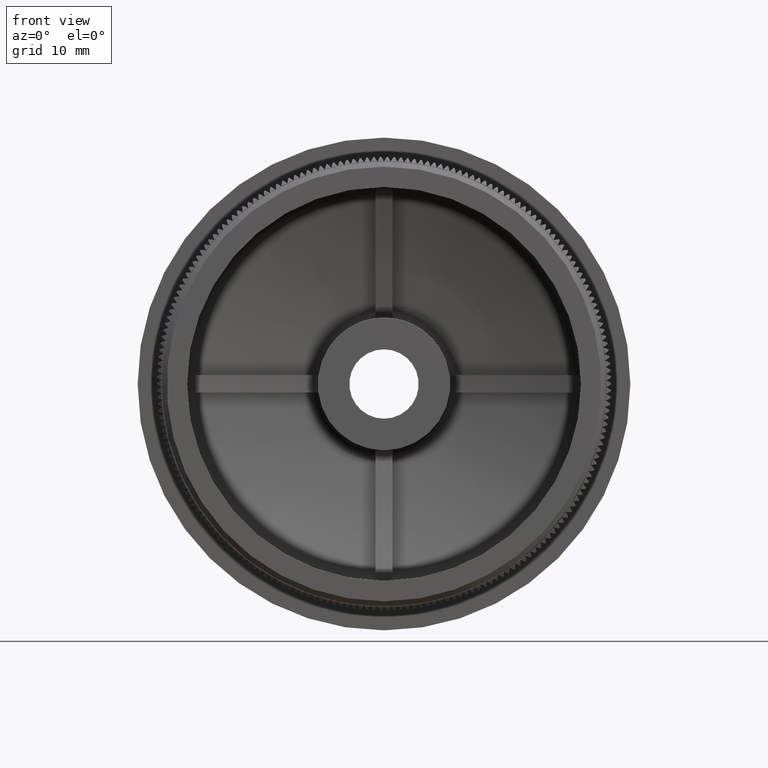
[diagram: clean part render]
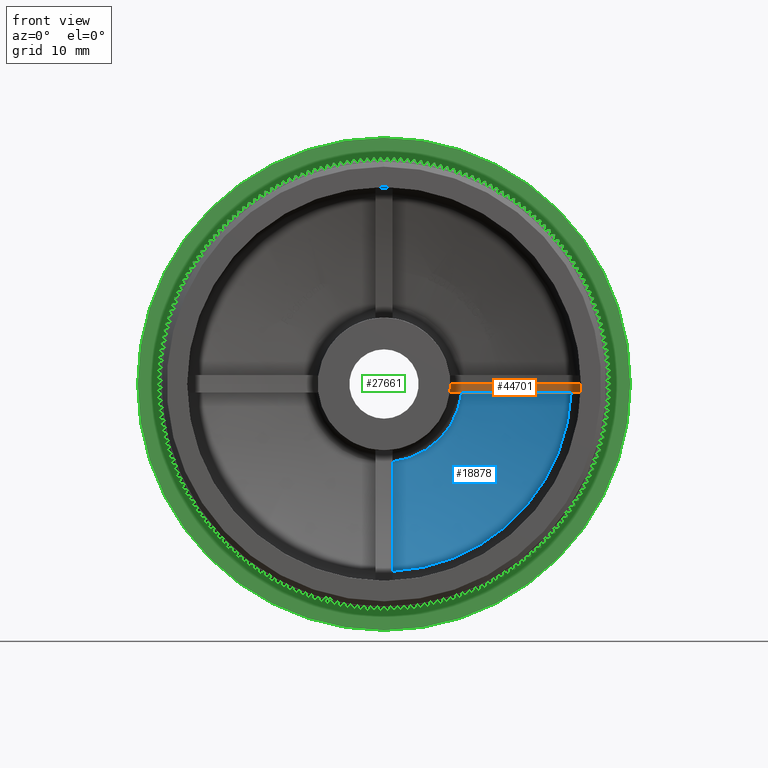
[diagram: same view with three faces highlighted in distinct colors, each labeled with its STEP entity id]
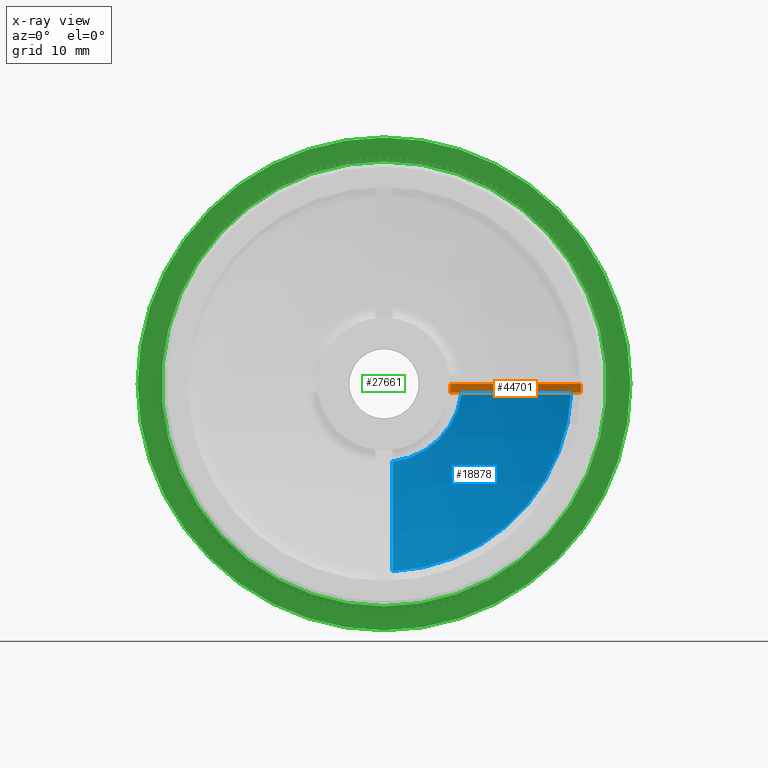
[diagram: x-ray of the same camera — body ghosted, the three highlighted faces saturated]
A machine part, front view with three faces highlighted in distinct colors.
The next image is the same camera in x-ray (body ghosted, the three faces saturated) — at least one of them is partly hidden behind the body in this view.
Their STEP definitions:

[orange] entity #44701 — the highlighted spherical surface has radius 46.0764 mm.
#833 = CIRCLE ( 'NONE', #47558, 19.29999999999999700 ) ;
#1590 = CIRCLE ( 'NONE', #49428, 6.500000000000000900 ) ;
#7968 = DIRECTION ( 'NONE',  ( -0.0000000000000000000, -1.000000000000000000, -0.0000000000000000000 ) ) ;
#9398 = CARTESIAN_POINT ( 'NONE',  ( 6.500000000000000900, 16.50921826470155200, -1.579794370896446900E-015 ) ) ;
#12012 = EDGE_CURVE ( 'NONE', #22072, #48135, #43799, .T. ) ;
#12281 = DIRECTION ( 'NONE',  ( -1.000000000000000000, 0.0000000000000000000, 0.0000000000000000000 ) ) ;
#12531 = EDGE_LOOP ( 'NONE', ( #48731, #29085, #55323, #56074 ) ) ;
#13891 = EDGE_CURVE ( 'NONE', #55106, #50538, #20161, .T. ) ;
#15462 = DIRECTION ( 'NONE',  ( -5.882405165090820600E-018, -0.0000000000000000000, 1.000000000000000000 ) ) ;
#16165 = CARTESIAN_POINT ( 'NONE',  ( 0.0000000000000000000, -29.10639209225696100, 0.0000000000000000000 ) ) ;
#16758 = DIRECTION ( 'NONE',  ( 0.0000000000000000000, 0.0000000000000000000, -1.000000000000000000 ) ) ;
#20161 = CIRCLE ( 'NONE', #40112, 46.06855118450546600 ) ;
#21252 = DIRECTION ( 'NONE',  ( -1.598721155460225700E-014, 0.0000000000000000000, -1.000000000000000000 ) ) ;
#22072 = VERTEX_POINT ( 'NONE', #9398 ) ;
#23520 = FACE_OUTER_BOUND ( 'NONE', #12531, .T. ) ;
#23986 = CARTESIAN_POINT ( 'NONE',  ( 19.29999999999999700, 12.73310967627991300, -2.363568322354391400E-015 ) ) ;
#24158 = EDGE_CURVE ( 'NONE', #22072, #50538, #1590, .T. ) ;
#24818 = AXIS2_PLACEMENT_3D ( 'NONE', #16165, #47159, #12281 ) ;
#25583 = AXIS2_PLACEMENT_3D ( 'NONE', #30816, #52892, #30623 ) ;
#27648 = CARTESIAN_POINT ( 'NONE',  ( 6.444183423892371600, 16.50921826470155200, -0.8499999999999998700 ) ) ;
#29085 = ORIENTED_EDGE ( 'NONE', *, *, #24158, .T. ) ;
#30162 = CARTESIAN_POINT ( 'NONE',  ( 0.0000000000000000000, 12.73310967627991300, 0.0000000000000000000 ) ) ;
#30623 = DIRECTION ( 'NONE',  ( -1.000000000000000000, 0.0000000000000000000, 1.224646799147353200E-016 ) ) ;
#30772 = CARTESIAN_POINT ( 'NONE',  ( 0.0000000000000000000, 16.50921826470155200, 0.0000000000000000000 ) ) ;
#30816 = CARTESIAN_POINT ( 'NONE',  ( 0.0000000000000000000, -29.10639209225696100, 0.0000000000000000000 ) ) ;
#31300 = CARTESIAN_POINT ( 'NONE',  ( 19.28127329820309700, 12.73310967627991300, -0.8499999999999997600 ) ) ;
#33142 = CARTESIAN_POINT ( 'NONE',  ( 5.000044390327195400E-018, -29.10639209225696100, -0.8499999999999998700 ) ) ;
#33546 = DIRECTION ( 'NONE',  ( -1.000000000000000000, -3.539594854822876200E-015, -4.706908051626165200E-018 ) ) ;
#39694 = DIRECTION ( 'NONE',  ( 0.0000000000000000000, 1.000000000000000000, 0.0000000000000000000 ) ) ;
#40112 = AXIS2_PLACEMENT_3D ( 'NONE', #33142, #15462, #33546 ) ;
#43799 = CIRCLE ( 'NONE', #25583, 46.07639209225696700 ) ;
#44701 = ADVANCED_FACE ( 'NONE', ( #23520 ), #47060, .F. ) ;
#47060 = SPHERICAL_SURFACE ( 'NONE', #24818, 46.07639209225696700 ) ;
#47159 = DIRECTION ( 'NONE',  ( -0.0000000000000000000, -0.0000000000000000000, -1.000000000000000000 ) ) ;
#47558 = AXIS2_PLACEMENT_3D ( 'NONE', #30162, #7968, #16758 ) ;
#48135 = VERTEX_POINT ( 'NONE', #23986 ) ;
#48731 = ORIENTED_EDGE ( 'NONE', *, *, #12012, .F. ) ;
#49428 = AXIS2_PLACEMENT_3D ( 'NONE', #30772, #39694, #21252 ) ;
#50538 = VERTEX_POINT ( 'NONE', #27648 ) ;
#52892 = DIRECTION ( 'NONE',  ( -1.224646799147353200E-016, 0.0000000000000000000, -1.000000000000000000 ) ) ;
#55106 = VERTEX_POINT ( 'NONE', #31300 ) ;
#55323 = ORIENTED_EDGE ( 'NONE', *, *, #13891, .F. ) ;
#56074 = ORIENTED_EDGE ( 'NONE', *, *, #56625, .T. ) ;
#56625 = EDGE_CURVE ( 'NONE', #55106, #48135, #833, .T. ) ;

[blue] entity #18878 — the highlighted spherical surface has radius 48.0764 mm.
#681 = AXIS2_PLACEMENT_3D ( 'NONE', #7205, #29763, #7020 ) ;
#1221 = CIRCLE ( 'NONE', #36498, 7.659315522426401100 ) ;
#3541 = CARTESIAN_POINT ( 'NONE',  ( 0.0000000000000000000, 15.32066155052988400, 0.0000000000000000000 ) ) ;
#7020 = DIRECTION ( 'NONE',  ( 2.007411001179447500E-016, -1.335266643481160600E-014, -1.000000000000000000 ) ) ;
#7205 = CARTESIAN_POINT ( 'NONE',  ( 0.8499999999999996400, -29.10639209225691100, 1.700015092711246200E-016 ) ) ;
#7563 = DIRECTION ( 'NONE',  ( 0.0000000000000000000, 0.0000000000000000000, -1.000000000000000000 ) ) ;
#9225 = SPHERICAL_SURFACE ( 'NONE', #36966, 48.07639209225691000 ) ;
#9726 = ORIENTED_EDGE ( 'NONE', *, *, #39513, .T. ) ;
#10287 = DIRECTION ( 'NONE',  ( -1.000000000000000000, -1.775543752953327000E-014, -6.766553936559935400E-018 ) ) ;
#10731 = CARTESIAN_POINT ( 'NONE',  ( 0.0000000000000000000, 18.35595469270876000, 0.0000000000000000000 ) ) ;
#11496 = VERTEX_POINT ( 'NONE', #31463 ) ;
#11500 = ORIENTED_EDGE ( 'NONE', *, *, #17551, .T. ) ;
#11741 = ORIENTED_EDGE ( 'NONE', *, *, #30592, .T. ) ;
#12449 = DIRECTION ( 'NONE',  ( -0.0000000000000000000, -1.000000000000000000, -0.0000000000000000000 ) ) ;
#13931 = EDGE_LOOP ( 'NONE', ( #9726, #35847, #11741, #11500 ) ) ;
#17511 = VERTEX_POINT ( 'NONE', #56017 ) ;
#17551 = EDGE_CURVE ( 'NONE', #43699, #17511, #45443, .T. ) ;
#18878 = ADVANCED_FACE ( 'NONE', ( #46698 ), #9225, .F. ) ;
#20570 = CIRCLE ( 'NONE', #42064, 48.06887742197047700 ) ;
#20896 = DIRECTION ( 'NONE',  ( 0.0000000000000000000, 0.0000000000000000000, 1.000000000000000000 ) ) ;
#25440 = CIRCLE ( 'NONE', #681, 48.06887742197047700 ) ;
#27100 = CARTESIAN_POINT ( 'NONE',  ( 7.612004615873667400, 18.35595469270876000, -0.8499999999999998700 ) ) ;
#28228 = DIRECTION ( 'NONE',  ( 3.552713678800500900E-015, 0.0000000000000000000, -1.000000000000000000 ) ) ;
#29763 = DIRECTION ( 'NONE',  ( -1.000000000000000000, -0.0000000000000000000, -2.000017756130879000E-016 ) ) ;
#30592 = EDGE_CURVE ( 'NONE', #11496, #43699, #25440, .T. ) ;
#31463 = CARTESIAN_POINT ( 'NONE',  ( 0.8500000000000012000, 18.35595469270876000, -7.612004615873666500 ) ) ;
#33560 = AXIS2_PLACEMENT_3D ( 'NONE', #3541, #12449, #7563 ) ;
#35847 = ORIENTED_EDGE ( 'NONE', *, *, #38272, .T. ) ;
#36498 = AXIS2_PLACEMENT_3D ( 'NONE', #10731, #46386, #28228 ) ;
#36546 = DIRECTION ( 'NONE',  ( -5.882405165090820600E-018, -0.0000000000000000000, 1.000000000000000000 ) ) ;
#36966 = AXIS2_PLACEMENT_3D ( 'NONE', #47426, #20896, #46829 ) ;
#38272 = EDGE_CURVE ( 'NONE', #56300, #11496, #1221, .T. ) ;
#39513 = EDGE_CURVE ( 'NONE', #17511, #56300, #20570, .T. ) ;
#42064 = AXIS2_PLACEMENT_3D ( 'NONE', #49672, #36546, #10287 ) ;
#43699 = VERTEX_POINT ( 'NONE', #51956 ) ;
#45443 = CIRCLE ( 'NONE', #33560, 18.37325178702364100 ) ;
#46386 = DIRECTION ( 'NONE',  ( 0.0000000000000000000, 1.000000000000000000, 0.0000000000000000000 ) ) ;
#46698 = FACE_OUTER_BOUND ( 'NONE', #13931, .T. ) ;
#46829 = DIRECTION ( 'NONE',  ( 1.000000000000000000, 0.0000000000000000000, 0.0000000000000000000 ) ) ;
#47426 = CARTESIAN_POINT ( 'NONE',  ( 0.0000000000000000000, -29.10639209225691100, 0.0000000000000000000 ) ) ;
#49672 = CARTESIAN_POINT ( 'NONE',  ( 5.000044390327195400E-018, -29.10639209225691100, -0.8499999999999998700 ) ) ;
#51956 = CARTESIAN_POINT ( 'NONE',  ( 0.8500000000000033100, 15.32066155052988800, -18.35357952088276100 ) ) ;
#56017 = CARTESIAN_POINT ( 'NONE',  ( 18.35357952088275700, 15.32066155052988800, -0.8499999999999996400 ) ) ;
#56300 = VERTEX_POINT ( 'NONE', #27100 ) ;

[green] entity #27661 — the highlighted planar face has unit normal (0, -1, -0).
#787 = DIRECTION ( 'NONE',  ( -0.0000000000000000000, -1.000000000000000000, -0.0000000000000000000 ) ) ;
#908 = DIRECTION ( 'NONE',  ( 0.0000000000000000000, 0.0000000000000000000, -1.000000000000000000 ) ) ;
#1352 = DIRECTION ( 'NONE',  ( 0.0000000000000000000, 0.0000000000000000000, -1.000000000000000000 ) ) ;
#2708 = AXIS2_PLACEMENT_3D ( 'NONE', #40748, #787, #1352 ) ;
#3782 = CARTESIAN_POINT ( 'NONE',  ( 0.0000000000000000000, 12.49999999999999800, -24.14999999999999900 ) ) ;
#5201 = VERTEX_POINT ( 'NONE', #10863 ) ;
#5927 = AXIS2_PLACEMENT_3D ( 'NONE', #50281, #32315, #908 ) ;
#9357 = EDGE_CURVE ( 'NONE', #53947, #28755, #40105, .T. ) ;
#10152 = AXIS2_PLACEMENT_3D ( 'NONE', #29185, #55661, #33857 ) ;
#10863 = CARTESIAN_POINT ( 'NONE',  ( 0.0000000000000000000, 12.49999999999999800, -21.80000000000000100 ) ) ;
#12376 = DIRECTION ( 'NONE',  ( 0.0000000000000000000, 0.0000000000000000000, -1.000000000000000000 ) ) ;
#15864 = DIRECTION ( 'NONE',  ( -0.0000000000000000000, -1.000000000000000000, -0.0000000000000000000 ) ) ;
#15945 = FACE_BOUND ( 'NONE', #41373, .T. ) ;
#17306 = ORIENTED_EDGE ( 'NONE', *, *, #9357, .T. ) ;
#17457 = DIRECTION ( 'NONE',  ( -0.0000000000000000000, -1.000000000000000000, -0.0000000000000000000 ) ) ;
#18473 = AXIS2_PLACEMENT_3D ( 'NONE', #39547, #17457, #12376 ) ;
#24061 = VERTEX_POINT ( 'NONE', #29419 ) ;
#24877 = ORIENTED_EDGE ( 'NONE', *, *, #56382, .F. ) ;
#26468 = CIRCLE ( 'NONE', #2708, 24.14999999999999900 ) ;
#27661 = ADVANCED_FACE ( 'NONE', ( #15945, #41638 ), #47363, .T. ) ;
#28018 = EDGE_CURVE ( 'NONE', #5201, #24061, #40918, .T. ) ;
#28755 = VERTEX_POINT ( 'NONE', #3782 ) ;
#29185 = CARTESIAN_POINT ( 'NONE',  ( 24.14999999999999900, 12.49999999999999800, 0.0000000000000000000 ) ) ;
#29419 = CARTESIAN_POINT ( 'NONE',  ( 2.669730022141230100E-015, 12.49999999999999800, 21.80000000000000100 ) ) ;
#32315 = DIRECTION ( 'NONE',  ( -0.0000000000000000000, -1.000000000000000000, -0.0000000000000000000 ) ) ;
#33857 = DIRECTION ( 'NONE',  ( 0.0000000000000000000, 0.0000000000000000000, -1.000000000000000000 ) ) ;
#34433 = EDGE_CURVE ( 'NONE', #28755, #53947, #26468, .T. ) ;
#38378 = DIRECTION ( 'NONE',  ( 0.0000000000000000000, 0.0000000000000000000, -1.000000000000000000 ) ) ;
#39547 = CARTESIAN_POINT ( 'NONE',  ( 0.0000000000000000000, 12.49999999999999800, 0.0000000000000000000 ) ) ;
#40105 = CIRCLE ( 'NONE', #18473, 24.14999999999999900 ) ;
#40748 = CARTESIAN_POINT ( 'NONE',  ( 0.0000000000000000000, 12.49999999999999800, 0.0000000000000000000 ) ) ;
#40918 = CIRCLE ( 'NONE', #44410, 21.80000000000000100 ) ;
#41373 = EDGE_LOOP ( 'NONE', ( #43974, #24877 ) ) ;
#41638 = FACE_OUTER_BOUND ( 'NONE', #57352, .T. ) ;
#42450 = CARTESIAN_POINT ( 'NONE',  ( 0.0000000000000000000, 12.49999999999999800, 0.0000000000000000000 ) ) ;
#43974 = ORIENTED_EDGE ( 'NONE', *, *, #28018, .F. ) ;
#44314 = CARTESIAN_POINT ( 'NONE',  ( 2.957522019940857900E-015, 12.49999999999999800, 24.14999999999999900 ) ) ;
#44410 = AXIS2_PLACEMENT_3D ( 'NONE', #42450, #15864, #38378 ) ;
#47363 = PLANE ( 'NONE',  #10152 ) ;
#50281 = CARTESIAN_POINT ( 'NONE',  ( 0.0000000000000000000, 12.49999999999999800, 0.0000000000000000000 ) ) ;
#50612 = CIRCLE ( 'NONE', #5927, 21.80000000000000100 ) ;
#51469 = ORIENTED_EDGE ( 'NONE', *, *, #34433, .T. ) ;
#53947 = VERTEX_POINT ( 'NONE', #44314 ) ;
#55661 = DIRECTION ( 'NONE',  ( 0.0000000000000000000, -1.000000000000000000, -0.0000000000000000000 ) ) ;
#56382 = EDGE_CURVE ( 'NONE', #24061, #5201, #50612, .T. ) ;
#57352 = EDGE_LOOP ( 'NONE', ( #51469, #17306 ) ) ;